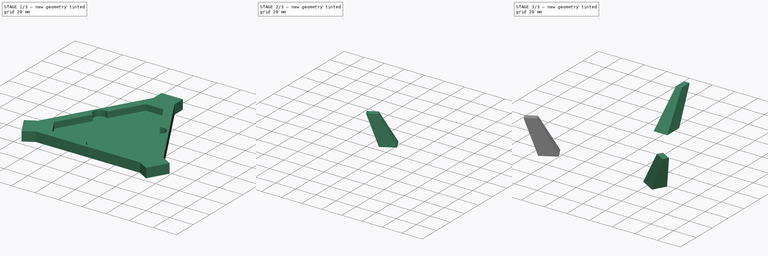
[diagram: build sequence overview — one tinted view per stage of 3, left to right]
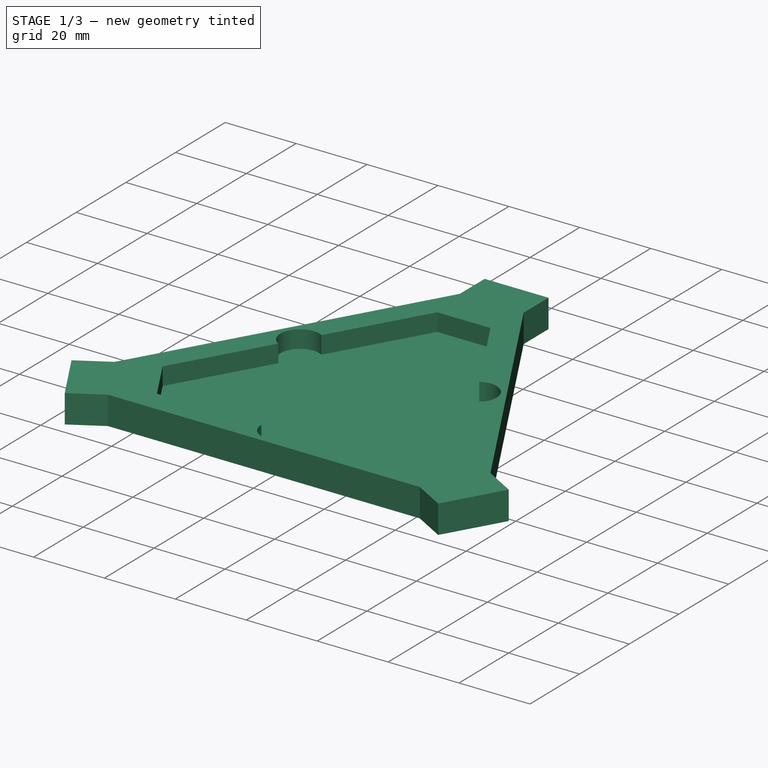
[diagram: stage 1 of 3 — iso view after this stage's code; geometry added in this stage tinted green]
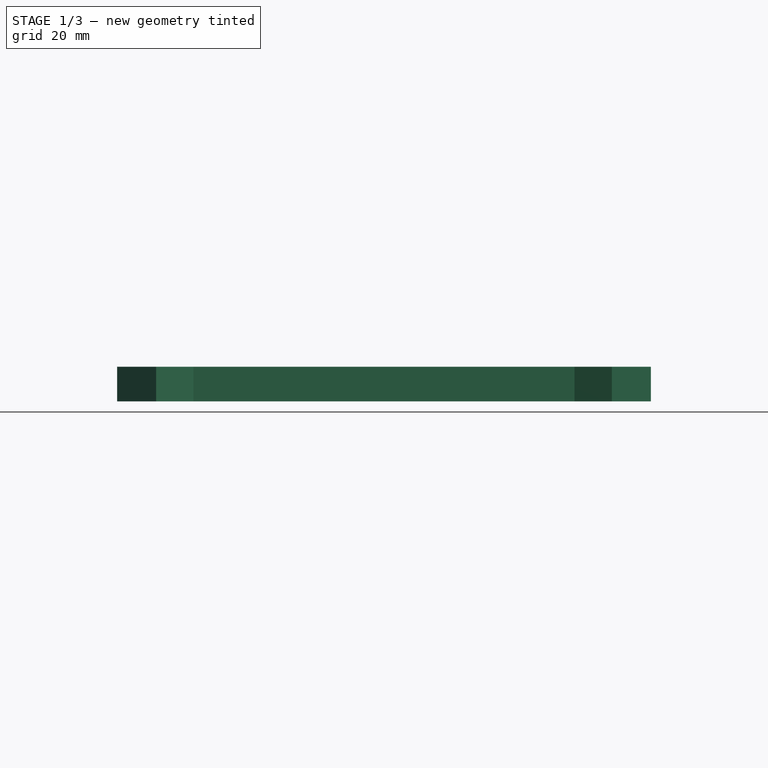
[diagram: stage 1 of 3 — front view after this stage's code; geometry added in this stage tinted green]
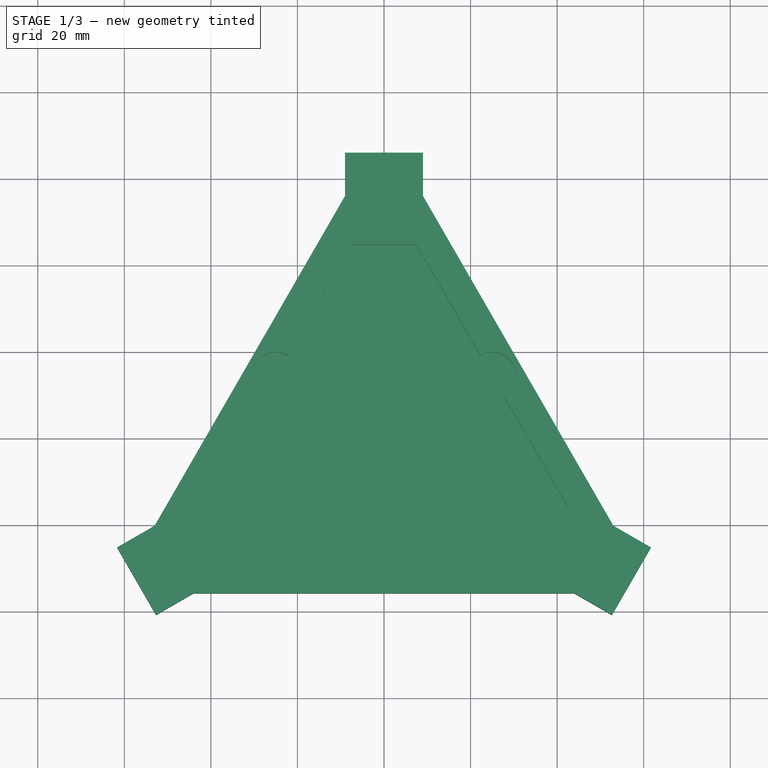
[diagram: stage 1 of 3 — top view after this stage's code; geometry added in this stage tinted green]
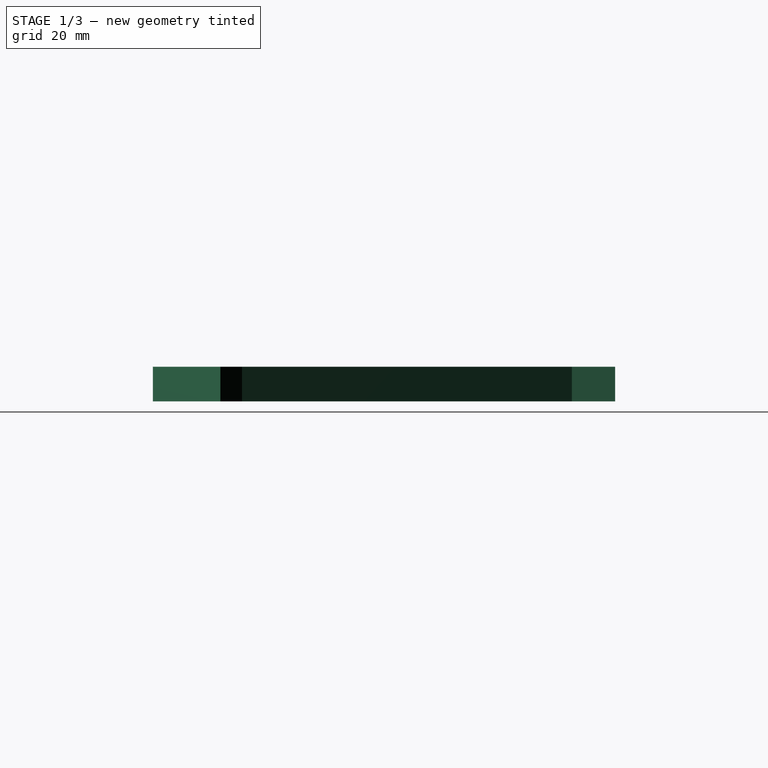
[diagram: stage 1 of 3 — right view after this stage's code; geometry added in this stage tinted green]
FCSTD DOCUMENT
Label: XMP Base
objects: Sketcher::SketchObject×9, Part::Loft×3, PartDesign::Pocket×2, PartDesign::Pad×1
note: 18 computed .brp shape members not serialized (recipe doc carries the construction recipe); baked Part::Feature solids carry a one-line shape summary decoded from their .brp

FEATURE [Sketcher::SketchObject] Sketch
  sketch-geometry (14):
    g0: LineSegment StartX=8.99998 StartY=56.003 StartZ=0 EndX=53 EndY=-20.2073 EndZ=0
    g1: LineSegment StartX=44 StartY=-35.7957 StartZ=0 EndX=-44 EndY=-35.7957 EndZ=0
    g2: LineSegment StartX=-53 StartY=-20.2072 StartZ=0 EndX=-9.00002 EndY=56.003 EndZ=0
    g3: LineSegment [constr] StartX=-31 StartY=17.8979 StartZ=0 EndX=64.2628 EndY=-37.1021 EndZ=0
    g4: LineSegment [constr] StartX=-64.2628 StartY=-37.1021 StartZ=0 EndX=31 EndY=17.8978 EndZ=0
    g5: LineSegment StartX=-9.00002 StartY=56.003 StartZ=0 EndX=-9.00002 EndY=66.003 EndZ=0
    g6: LineSegment StartX=-9.00002 StartY=66.003 StartZ=0 EndX=8.99998 EndY=66.003 EndZ=0
    g7: LineSegment StartX=8.99998 StartY=66.003 StartZ=0 EndX=8.99998 EndY=56.003 EndZ=0
    g8: LineSegment StartX=-53 StartY=-20.2072 StartZ=0 EndX=-61.6603 EndY=-25.2072 EndZ=0
    g9: LineSegment StartX=-61.6603 StartY=-25.2072 StartZ=0 EndX=-52.6603 EndY=-40.7957 EndZ=0
    g10: LineSegment StartX=-52.6603 StartY=-40.7957 StartZ=0 EndX=-44 EndY=-35.7957 EndZ=0
    g11: LineSegment StartX=44 StartY=-35.7957 StartZ=0 EndX=52.6602 EndY=-40.7957 EndZ=0
    g12: LineSegment StartX=52.6602 StartY=-40.7957 StartZ=0 EndX=61.6602 EndY=-25.2072 EndZ=0
    g13: LineSegment StartX=61.6602 StartY=-25.2072 StartZ=0 EndX=53 EndY=-20.2073 EndZ=0
  constraints (42):
    c: Horizontal(g1)
    c: Distance(g2) = 88
    c: PointOnObject(g3,g2)
    c: PointOnObject(g4,g0)
    c: Symmetric(g2,g1,g4)
    c: Symmetric(g2,g2,g3)
    c: PointOnObject(g-1,g4)
    c: PointOnObject(g-1,g3)
    c: Vertical(g5)
    c: Coincident(g6,g5)
    c: Horizontal(g6)
    c: Coincident(g7,g6)
    c: Vertical(g7)
    c: Coincident(g5,g2)
    c: Coincident(g7,g0)
    c: DistanceY(g5) = 10
    c: DistanceY(g7) = -10
    c: Coincident(g9,g8)
    c: Coincident(g10,g9)
    c: Coincident(g10,g1)
    c: Distance(g9) = 18
    c: Distance(g8) = 10
    c: Coincident(g8,g2)
    c: Distance(g10) = 10
    c: Angle(g2,g8) = 2.61799
    c: Angle(g1,g10) = 3.66519
    c: Perpendicular(g10,g9)
    c: Distance(g4) = 110
    c: Coincident(g11,g1)
    c: Coincident(g12,g11)
    c: Coincident(g13,g12)
    c: Coincident(g13,g0)
    c: Perpendicular(g13,g12)
    c: Perpendicular(g11,g12)
    c: Distance(g11) = 10
    c: Distance(g13) = 10
    c: Distance(g3) = 110
    c: Angle(g1,g11) = 2.61799
    c: Equal(g2,g0)
    c: Equal(g1,g2)
    c: Equal(g6,g9)
    c: Equal(g12,g9)
FEATURE [PartDesign::Pad] Pad
  Length = 8
  Length2 = 100
  Sketch = -> Sketch
  Type = 0
FEATURE [Sketcher::SketchObject] Sketch001
  Placement = pos=(0,0,8) rot=(0,0,1;0rad)
  Support = -> Pad [Face14]
  sketch-geometry (17):
    g0: LineSegment StartX=-35 StartY=-28.8675 StartZ=0 EndX=-42.5 EndY=-15.8771 EndZ=0
    g1: LineSegment StartX=-35 StartY=-28.8675 StartZ=0 EndX=-5.49998 EndY=-28.8675 EndZ=0
    g2: LineSegment StartX=5.50002 StartY=-28.8675 StartZ=0 EndX=35 EndY=-28.8675 EndZ=0
    g3: LineSegment StartX=35 StartY=-28.8675 StartZ=0 EndX=42.5 EndY=-15.8771 EndZ=0
    g4: LineSegment StartX=42.5 StartY=-15.8771 StartZ=0 EndX=27.75 EndY=9.67064 EndZ=0
    g5: LineSegment StartX=22.25 StartY=19.1969 StartZ=0 EndX=7.50001 EndY=44.7447 EndZ=0
    g6: LineSegment StartX=7.50001 StartY=44.7447 StartZ=0 EndX=-7.49999 EndY=44.7447 EndZ=0
    g7: LineSegment StartX=-7.49999 StartY=44.7447 StartZ=0 EndX=-22.25 EndY=19.1969 EndZ=0
    g8: LineSegment StartX=-42.5 StartY=-15.8771 StartZ=0 EndX=-27.75 EndY=9.67063 EndZ=0
    g9: ArcOfCircle CenterX=-25 CenterY=14.4338 CenterZ=0 NormalX=0 NormalY=0 NormalZ=1 Radius=5.5 StartAngle=1.0472 EndAngle=4.18879
    g10: LineSegment [constr] StartX=-42.5 StartY=-15.8771 StartZ=0 EndX=-7.49999 EndY=44.7447 EndZ=0
    g11: ArcOfCircle CenterX=25 CenterY=14.4338 CenterZ=0 NormalX=0 NormalY=0 NormalZ=1 Radius=5.5 StartAngle=5.23599 EndAngle=8.37758
    g12: LineSegment [constr] StartX=7.50001 StartY=44.7447 StartZ=0 EndX=42.5 EndY=-15.8771 EndZ=0
    g13: ArcOfCircle CenterX=1.6799e-05 CenterY=-28.8675 CenterZ=0 NormalX=0 NormalY=0 NormalZ=1 Radius=5.5 StartAngle=3.14159 EndAngle=6.28319
    g14: LineSegment [constr] StartX=-35 StartY=-28.8675 StartZ=0 EndX=35 EndY=-28.8675 EndZ=0
    g15: LineSegment [constr] StartX=-47.8526 StartY=27.6277 StartZ=0 EndX=38.75 EndY=-22.3723 EndZ=0
    g16: LineSegment [constr] StartX=-38.75 StartY=-22.3723 StartZ=0 EndX=47.8526 EndY=27.6277 EndZ=0
  constraints (52):
    c: Coincident(g1,g0)
    c: Horizontal(g1)
    c: Horizontal(g2)
    c: Coincident(g3,g2)
    c: Coincident(g4,g3)
    c: Coincident(g6,g5)
    c: Horizontal(g6)
    c: Coincident(g7,g6)
    c: Coincident(g8,g0)
    c: Coincident(g9,g7)
    c: Coincident(g9,g8)
    c: Distance(g7,g8) = 11
    c: PointOnObject(g8,g10)
    c: PointOnObject(g7,g10)
    c: Coincident(g10,g6)
    c: Coincident(g10,g0)
    c: Angle(g0) = 2.0944
    c: Distance(g0) = 15
    c: Distance(g8,g0) = 29.5
    c: Distance(g7,g6) = 29.5
    c: Angle(g10,g6) = 2.0944
    c: DistanceX(g6) = -15
    c: DistanceX(g1) = 29.5
    c: DistanceX(g2) = 29.5
    c: Coincident(g11,g5)
    c: Coincident(g4,g11)
    c: Distance(g4,g5) = 11
    c: PointOnObject(g4,g12)
    c: PointOnObject(g5,g12)
    c: Coincident(g12,g5)
    c: Coincident(g3,g12)
    c: Distance(g4,g3) = 29.5
    c: Distance(g5,g5) = 29.5
    c: Distance(g3) = 15
    c: Coincident(g13,g2)
    c: Coincident(g13,g1)
    c: Radius(g13) = 5.5
    c: Distance(g2,g1) = 11
    c: PointOnObject(g1,g14)
    c: PointOnObject(g2,g14)
    c: Coincident(g14,g0)
    c: Coincident(g14,g2)
    c: Symmetric(g3,g2,g15)
    c: PointOnObject(g15,g3)
    c: Distance(g15) = 100
    c: PointOnObject(g16,g0)
    c: Symmetric(g0,g0,g16)
    c: Distance(g16) = 100
    c: PointOnObject(g-1,g16)
    c: PointOnObject(g-1,g15)
    c: Equal(g11,g13)
    c: Equal(g13,g9)
FEATURE [PartDesign::Pocket] Pocket
  Length = 5
  Sketch = -> Sketch001
  Type = 0
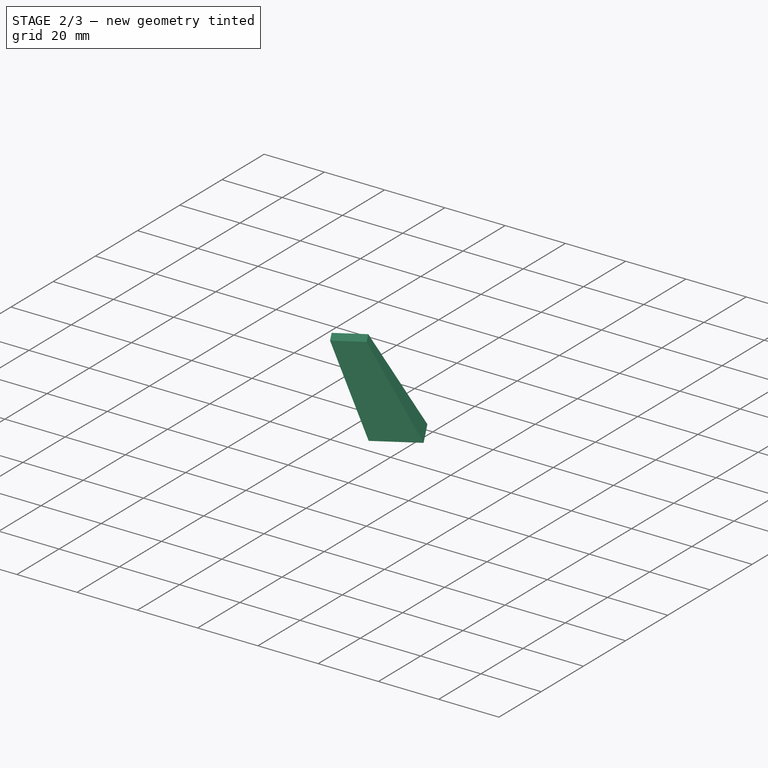
[diagram: stage 2 of 3 — iso view after this stage's code; geometry added in this stage tinted green]
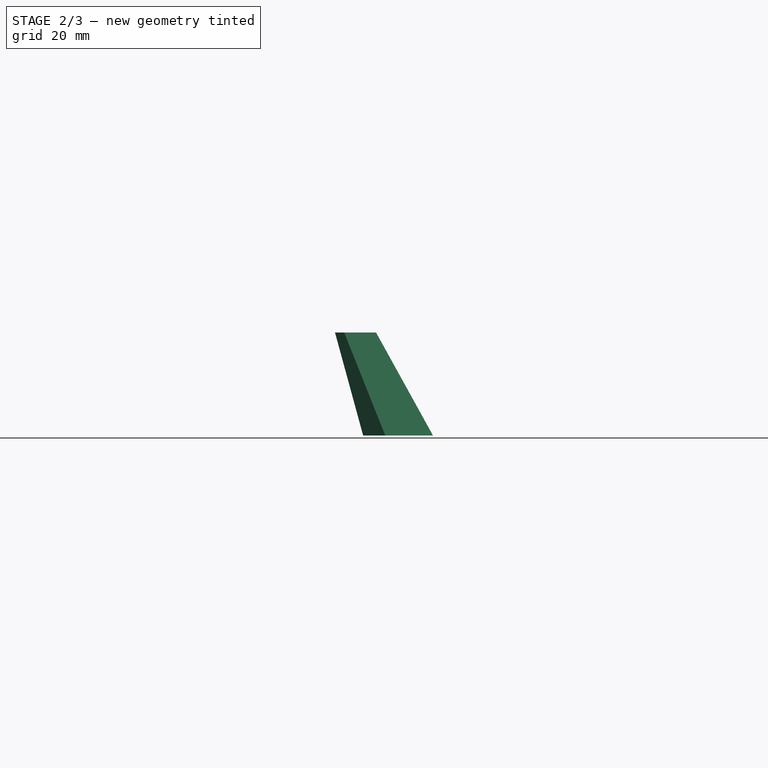
[diagram: stage 2 of 3 — front view after this stage's code; geometry added in this stage tinted green]
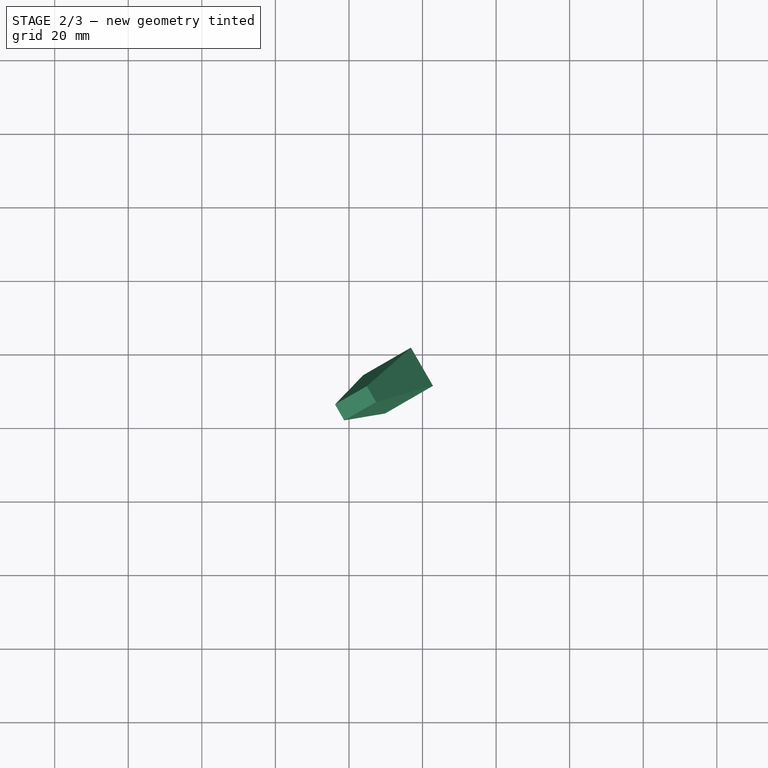
[diagram: stage 2 of 3 — top view after this stage's code; geometry added in this stage tinted green]
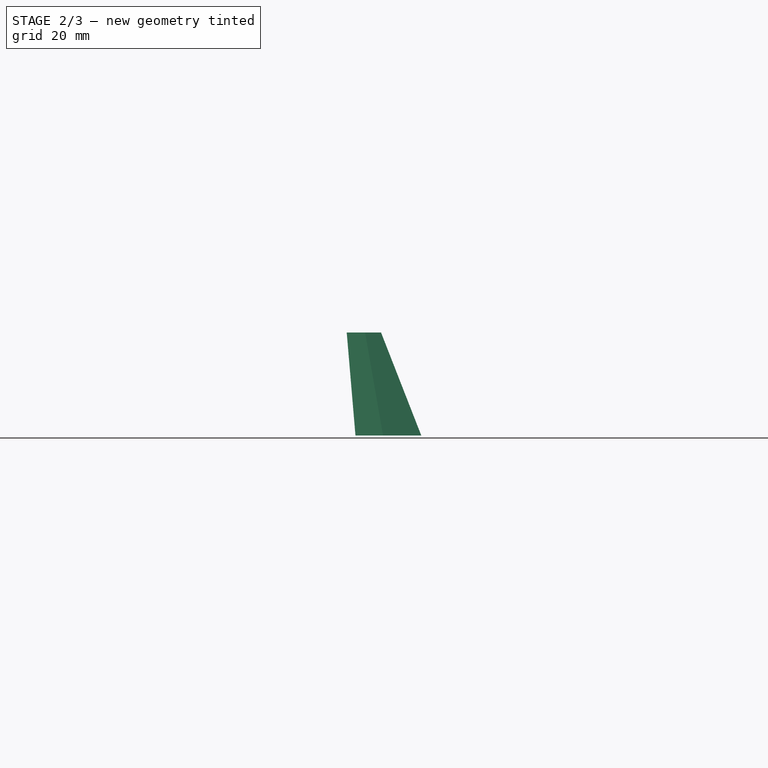
[diagram: stage 2 of 3 — right view after this stage's code; geometry added in this stage tinted green]
FEATURE [Sketcher::SketchObject] Sketch003
  Placement = pos=(0,0,3) rot=(0,0,1;0rad)
  Support = -> Pocket [Face27]
  sketch-geometry (6):
    g0: Circle CenterX=-26.6303 CenterY=15.375 CenterZ=0 NormalX=0 NormalY=0 NormalZ=1 Radius=1.5
    g1: LineSegment [constr] StartX=-51.9615 StartY=30 StartZ=0 EndX=51.9615 EndY=-30 EndZ=0
    g2: LineSegment [constr] StartX=0 StartY=-60 StartZ=0 EndX=0 EndY=60 EndZ=0
    g3: LineSegment [constr] StartX=51.9615 StartY=30 StartZ=0 EndX=-51.9615 EndY=-30 EndZ=0
    g4: Circle CenterX=0 CenterY=-30.75 CenterZ=0 NormalX=0 NormalY=0 NormalZ=1 Radius=1.5
    g5: Circle CenterX=26.6303 CenterY=15.375 CenterZ=0 NormalX=0 NormalY=0 NormalZ=1 Radius=1.5
  constraints (21):
    c: Radius(g0) = 1.5
    c: Vertical(g2)
    c: PointOnObject(g0,g1)
    c: PointOnObject(g-1,g3)
    c: PointOnObject(g-1,g1)
    c: PointOnObject(g-1,g2)
    c: Distance(g-1,g2) = 60
    c: Distance(g-1,g2) = 60
    c: Distance(g-1,g1) = 60
    c: Distance(g-1,g3) = 60
    c: Distance(g-1,g3) = 60
    c: Distance(g-1,g1) = 60
    c: Angle(g3,g2) = 1.0472
    c: Angle(g2,g1) = 1.0472
    c: Distance(g-1,g0) = 30.75
    c: Equal(g0,g4)
    c: Equal(g5,g0)
    c: PointOnObject(g4,g2)
    c: Distance(g-1,g4) = 30.75
    c: PointOnObject(g5,g3)
    c: Distance(g-1,g5) = 30.75
FEATURE [PartDesign::Pocket] Pocket001
  Length = 5
  Sketch = -> Sketch003
  Type = 1
FEATURE [Part::Loft] Loft002
  Ruled = false
  Sections = -> [Sketch008,Sketch005]
  Solid = true
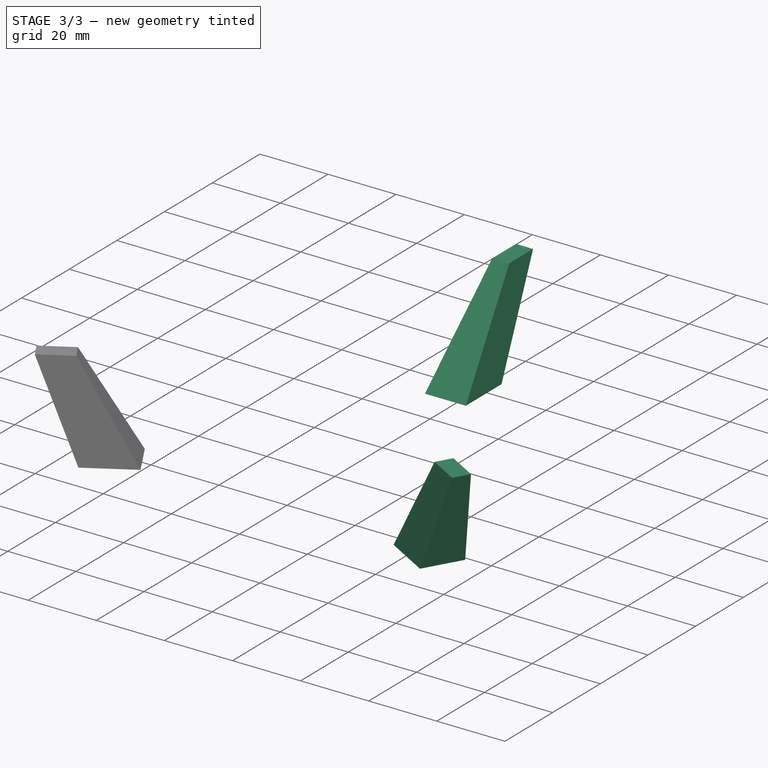
[diagram: stage 3 of 3 — iso view after this stage's code; geometry added in this stage tinted green]
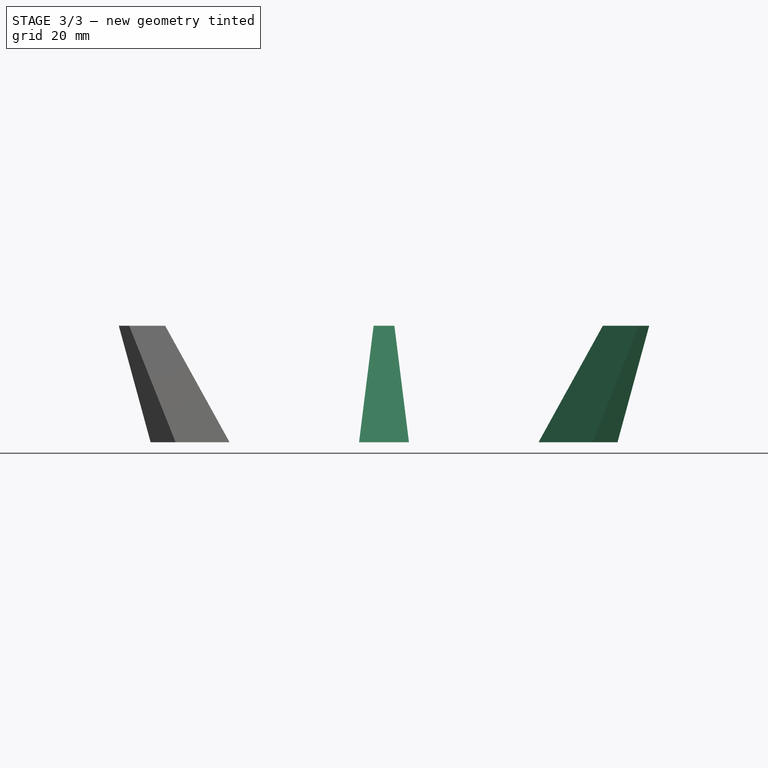
[diagram: stage 3 of 3 — front view after this stage's code; geometry added in this stage tinted green]
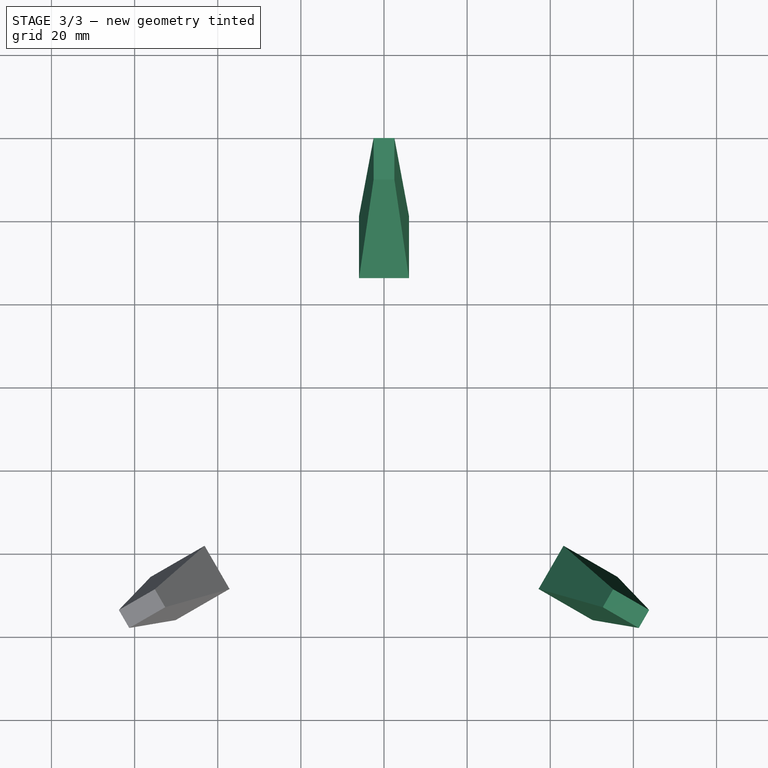
[diagram: stage 3 of 3 — top view after this stage's code; geometry added in this stage tinted green]
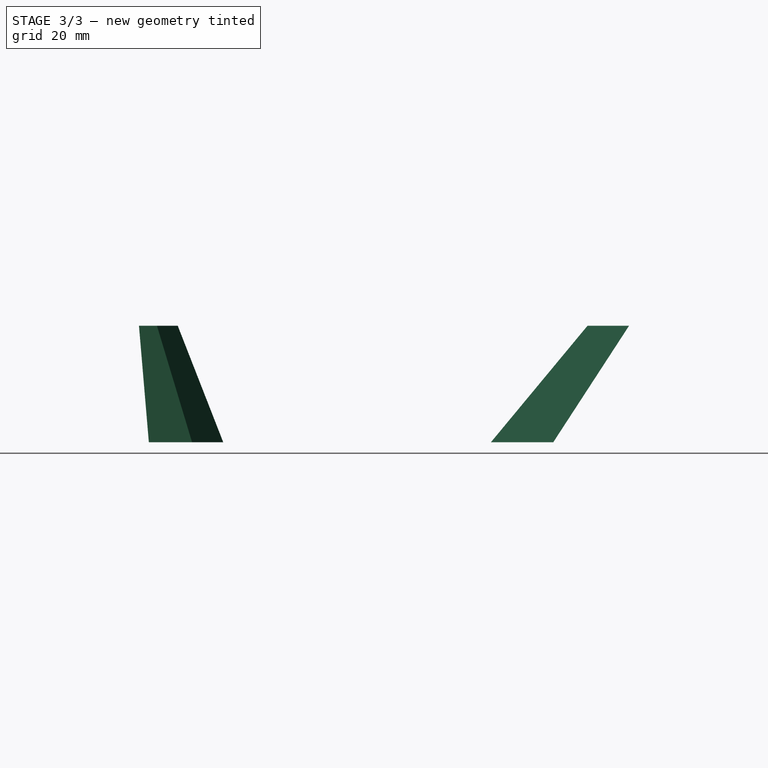
[diagram: stage 3 of 3 — right view after this stage's code; geometry added in this stage tinted green]
FEATURE [Sketcher::SketchObject] Sketch004
  ExternalGeometry = -> [Pocket001]
  Placement = pos=(0,0,8) rot=(0,0,1;0rad)
  Support = -> Pocket001 [Face5]
  sketch-geometry (14):
    g0: LineSegment StartX=43.1836 StartY=-18.0039 StartZ=0 EndX=37.1836 EndY=-28.3962 EndZ=0
    g1: LineSegment StartX=37.1836 StartY=-28.3962 StartZ=0 EndX=50.174 EndY=-35.8962 EndZ=0
    g2: LineSegment StartX=50.174 StartY=-35.8962 StartZ=0 EndX=56.174 EndY=-25.5038 EndZ=0
    g3: LineSegment StartX=56.174 StartY=-25.5038 StartZ=0 EndX=43.1836 EndY=-18.0039 EndZ=0
    g4: LineSegment [constr] StartX=-54.9062 StartY=31.7001 StartZ=0 EndX=54.9061 EndY=-31.7 EndZ=0
    g5: LineSegment [constr] StartX=54.9062 StartY=31.7001 StartZ=0 EndX=-54.9061 EndY=-31.7 EndZ=0
    g6: LineSegment [constr] StartX=0 StartY=-63.4001 StartZ=0 EndX=0 EndY=63.3999 EndZ=0
    g7: LineSegment [constr] StartX=-54.9061 StartY=-31.7 StartZ=0 EndX=0 EndY=-63.4001 EndZ=0
    g8: LineSegment [constr] StartX=54.9061 StartY=-31.7 StartZ=0 EndX=0 EndY=-63.4001 EndZ=0
    g9: LineSegment [constr] StartX=54.9061 StartY=-31.7 StartZ=0 EndX=54.9062 EndY=31.7001 EndZ=0
    g10: LineSegment [constr] StartX=54.9062 StartY=31.7001 StartZ=0 EndX=0 EndY=63.3999 EndZ=0
    g11: LineSegment [constr] StartX=0 StartY=63.3999 StartZ=0 EndX=-54.9062 EndY=31.7001 EndZ=0
    g12: LineSegment [constr] StartX=-54.9062 StartY=31.7001 StartZ=0 EndX=-54.9061 EndY=-31.7 EndZ=0
    g13: GeomPoint [constr] X=53.174 Y=-30.7 Z=0
  constraints (38):
    c: Coincident(g1,g0)
    c: Coincident(g2,g1)
    c: Coincident(g3,g2)
    c: Coincident(g3,g0)
    c: Perpendicular(g2,g1)
    c: Parallel(g3,g1)
    c: Parallel(g0,g2)
    c: PointOnObject(g-1,g5)
    c: PointOnObject(g-1,g4)
    c: PointOnObject(g-1,g6)
    c: Coincident(g7,g5)
    c: Coincident(g7,g6)
    c: Coincident(g8,g4)
    c: Coincident(g8,g6)
    c: Coincident(g9,g4)
    c: Coincident(g9,g5)
    c: Coincident(g10,g5)
    c: Coincident(g10,g6)
    c: Coincident(g11,g6)
    c: Coincident(g11,g4)
    c: Coincident(g12,g4)
    c: Coincident(g12,g5)
    c: Equal(g8,g9)
    c: Equal(g10,g9)
    c: Equal(g11,g10)
    c: Vertical(g6)
    c: Equal(g11,g12)
    c: Equal(g12,g7)
    c: Angle(g5,g6) = 1.0472
    c: Distance(g0) = 12
    c: Distance(g1) = 15
    c: Symmetric(g0,g0,g4)
    c: Angle(g6,g4) = 1.0472
    c: Angle(g7,g5) = 1.0472
    c: DistanceY(g6) = 126.8
    c: PointOnObject(g13,g2)
    c: Distance(g13,g1) = 6
    c: Distance(g13,g4) = 2
FEATURE [Sketcher::SketchObject] Sketch005
  Placement = pos=(0,0,36) rot=(0,0,1;0rad)
  sketch-geometry (10):
    g0: LineSegment StartX=-63.7937 StartY=-33.9446 StartZ=0 EndX=-61.2937 EndY=-38.2747 EndZ=0
    g1: LineSegment StartX=-61.2937 StartY=-38.2747 StartZ=0 EndX=-52.6334 EndY=-33.2747 EndZ=0
    g2: LineSegment StartX=-52.6334 StartY=-33.2747 StartZ=0 EndX=-55.1334 EndY=-28.9446 EndZ=0
    g3: LineSegment StartX=-55.1334 StartY=-28.9446 StartZ=0 EndX=-63.7937 EndY=-33.9446 EndZ=0
    g4: LineSegment [constr] StartX=-62.5437 StartY=-36.1096 StartZ=0 EndX=12.8005 EndY=7.39038 EndZ=0
    g5: LineSegment [constr] StartX=-25.601 StartY=-14.7808 StartZ=0 EndX=25.601 EndY=-14.7808 EndZ=0
    g6: LineSegment [constr] StartX=25.601 StartY=-14.7808 StartZ=0 EndX=-1.9901e-05 EndY=29.5615 EndZ=0
    g7: LineSegment [constr] StartX=-25.601 StartY=-14.7808 StartZ=0 EndX=-1.9901e-05 EndY=29.5615 EndZ=0
    g8: LineSegment [constr] StartX=-12.8005 StartY=7.39038 StartZ=0 EndX=62.5437 EndY=-36.1096 EndZ=0
    g9: LineSegment [constr] StartX=0 StartY=-14.7808 StartZ=0 EndX=-1e-12 EndY=72.2192 EndZ=0
  constraints (29):
    c: Coincident(g1,g0)
    c: Coincident(g2,g1)
    c: Coincident(g3,g2)
    c: Coincident(g3,g0)
    c: Perpendicular(g3,g0)
    c: Perpendicular(g0,g1)
    c: Perpendicular(g3,g2)
    c: Distance(g1) = 10
    c: Distance(g0) = 5
    c: Horizontal(g5)
    c: Coincident(g7,g5)
    c: Coincident(g7,g6)
    c: Coincident(g6,g5)
    c: Angle(g5,g7) = 1.0472
    c: PointOnObject(g5,g4)
    c: PointOnObject(g-1,g4)
    c: Symmetric(g6,g5,g8)
    c: PointOnObject(g-1,g8)
    c: Symmetric(g6,g5,g4)
    c: Distance(g4) = 87
    c: Symmetric(g0,g0,g4)
    c: PointOnObject(g4,g6)
    c: Distance(g7) = 51.2021
    c: PointOnObject(g8,g7)
    c: Distance(g8) = 87
    c: PointOnObject(g4,g0)
    c: PointOnObject(g9,g5)
    c: Symmetric(g5,g5,g9)
    c: DistanceY(g9) = 87
FEATURE [Sketcher::SketchObject] Sketch006
  ExternalGeometry = -> [Pocket001]
  Placement = pos=(0,0,8) rot=(0,0,1;0rad)
  Support = -> Pocket001 [Face5]
  sketch-geometry (5):
    g0: LineSegment StartX=-6 StartY=61.4 StartZ=0 EndX=6 EndY=61.4 EndZ=0
    g1: LineSegment StartX=6 StartY=61.4 StartZ=0 EndX=6 EndY=46.4 EndZ=0
    g2: LineSegment StartX=6 StartY=46.4 StartZ=0 EndX=-6 EndY=46.4 EndZ=0
    g3: LineSegment StartX=-6 StartY=46.4 StartZ=0 EndX=-6 EndY=61.4 EndZ=0
    g4: GeomPoint [constr] X=0 Y=61.4 Z=0
  constraints (14):
    c: Coincident(g0,g1)
    c: Coincident(g1,g2)
    c: Coincident(g2,g3)
    c: Coincident(g3,g0)
    c: Horizontal(g0)
    c: Horizontal(g2)
    c: Vertical(g1)
    c: Vertical(g3)
    c: Symmetric(g0,g0,g-2)
    c: DistanceX(g2) = -12
    c: DistanceY(g3) = 15
    c: PointOnObject(g4,g0)
    c: Distance(g4,g0) = 6
    c: DistanceY(g-1,g4) = 61.4
FEATURE [Sketcher::SketchObject] Sketch007
  Placement = pos=(0,0,36) rot=(0,0,1;0rad)
  sketch-geometry (5):
    g0: LineSegment StartX=-2.5 StartY=79.6224 StartZ=0 EndX=2.5 EndY=79.6224 EndZ=0
    g1: LineSegment StartX=2.5 StartY=79.6224 StartZ=0 EndX=2.5 EndY=69.6224 EndZ=0
    g2: LineSegment StartX=2.5 StartY=69.6224 StartZ=0 EndX=-2.5 EndY=69.6224 EndZ=0
    g3: LineSegment StartX=-2.5 StartY=69.6224 StartZ=0 EndX=-2.5 EndY=79.6224 EndZ=0
    g4: LineSegment [constr] StartX=0 StartY=0 StartZ=0 EndX=0 EndY=79.6224 EndZ=0
  constraints (15):
    c: Coincident(g0,g1)
    c: Coincident(g1,g2)
    c: Coincident(g2,g3)
    c: Coincident(g3,g0)
    c: Horizontal(g0)
    c: Horizontal(g2)
    c: Vertical(g1)
    c: Vertical(g3)
    c: DistanceX(g2) = -5
    c: DistanceY(g3) = 10
    c: Symmetric(g0,g0,g-2)
    c: Vertical(g4)
    c: Coincident(g4,g-1)
    c: PointOnObject(g4,g0)
    c: DistanceY(g4) = 79.6224
FEATURE [Part::Loft] Loft001
  Ruled = false
  Sections = -> [Sketch006,Sketch007]
  Solid = true
FEATURE [Sketcher::SketchObject] Sketch008
  Placement = pos=(0,0,8) rot=(0,0,1;0rad)
  Support = -> Pocket001 [Face5]
  sketch-geometry (14):
    g0: LineSegment StartX=-56.147 StartY=-25.5099 StartZ=0 EndX=-50.1438 EndY=-35.9003 EndZ=0
    g1: LineSegment StartX=-50.1438 StartY=-35.9003 StartZ=0 EndX=-37.1557 EndY=-28.3964 EndZ=0
    g2: LineSegment StartX=-37.1557 StartY=-28.3964 StartZ=0 EndX=-43.1589 EndY=-18.0059 EndZ=0
    g3: LineSegment StartX=-43.1589 StartY=-18.0059 StartZ=0 EndX=-56.147 EndY=-25.5099 EndZ=0
    g4: LineSegment [constr] StartX=54.8579 StartY=31.6945 StartZ=0 EndX=-54.8771 EndY=-31.7056 EndZ=0
    g5: LineSegment [constr] StartX=54.8578 StartY=-31.6721 StartZ=0 EndX=-54.8385 EndY=31.661 EndZ=0
    g6: LineSegment [constr] StartX=-1.6e-11 StartY=-63.3889 StartZ=0 EndX=-1.6e-11 EndY=63.4111 EndZ=0
    g7: LineSegment [constr] StartX=-54.8385 StartY=31.661 StartZ=0 EndX=-1.6e-11 EndY=63.4111 EndZ=0
    g8: LineSegment [constr] StartX=-1.6e-11 StartY=63.4111 StartZ=0 EndX=54.8579 EndY=31.6945 EndZ=0
    g9: LineSegment [constr] StartX=54.8578 StartY=-31.6721 StartZ=0 EndX=54.8579 EndY=31.6945 EndZ=0
    g10: LineSegment [constr] StartX=-1.6e-11 StartY=-63.3889 StartZ=0 EndX=54.8578 EndY=-31.6721 EndZ=0
    g11: LineSegment [constr] StartX=-54.8385 StartY=31.661 StartZ=0 EndX=-54.8771 EndY=-31.7056 EndZ=0
    g12: LineSegment [constr] StartX=-54.8771 StartY=-31.7056 StartZ=0 EndX=-1.6e-11 EndY=-63.3889 EndZ=0
    g13: GeomPoint [constr] X=-53.1454 Y=-30.7051 Z=0
  constraints (37):
    c: Coincident(g1,g0)
    c: Coincident(g2,g1)
    c: Coincident(g3,g2)
    c: Coincident(g3,g0)
    c: Perpendicular(g0,g3)
    c: Parallel(g3,g1)
    c: Parallel(g0,g2)
    c: Distance(g2) = 12
    c: Distance(g1) = 15
    c: Vertical(g6)
    c: Coincident(g7,g6)
    c: Coincident(g8,g4)
    c: Coincident(g9,g5)
    c: Coincident(g9,g4)
    c: Coincident(g10,g6)
    c: Coincident(g10,g5)
    c: Coincident(g11,g5)
    c: Coincident(g11,g4)
    c: Coincident(g12,g4)
    c: Coincident(g12,g6)
    c: Coincident(g6,g8)
    c: Coincident(g5,g7)
    c: PointOnObject(g-1,g4)
    c: PointOnObject(g-1,g6)
    c: PointOnObject(g-1,g5)
    c: Equal(g11,g7)
    c: Equal(g11,g12)
    c: Equal(g12,g10)
    c: Equal(g10,g9)
    c: Equal(g8,g9)
    c: Angle(g6,g12) = 1.0472
    c: Angle(g6,g5) = 1.0472
    c: Distance(g6) = 126.8
    c: Symmetric(g1,g2,g4)
    c: PointOnObject(g13,g4)
    c: PointOnObject(g13,g0)
    c: Distance(g4,g13) = 2
FEATURE [Sketcher::SketchObject] Sketch009
  Placement = pos=(0,0,36) rot=(0,0,1;0rad)
  sketch-geometry (9):
    g0: LineSegment [constr] StartX=0 StartY=17.3205 StartZ=0 EndX=-15 EndY=-8.66027 EndZ=0
    g1: LineSegment [constr] StartX=-15 StartY=-8.66027 StartZ=0 EndX=15 EndY=-8.66027 EndZ=0
    g2: LineSegment [constr] StartX=15 StartY=-8.66027 StartZ=0 EndX=0 EndY=17.3205 EndZ=0
    g3: LineSegment [constr] StartX=0 StartY=-8.66027 StartZ=0 EndX=0 EndY=60.734 EndZ=0
    g4: LineSegment [constr] StartX=62.5437 StartY=-36.1096 StartZ=0 EndX=-7.5 EndY=4.33012 EndZ=0
    g5: LineSegment StartX=55.1334 StartY=-28.9445 StartZ=0 EndX=52.6334 EndY=-33.2746 EndZ=0
    g6: LineSegment StartX=52.6334 StartY=-33.2746 StartZ=0 EndX=61.2937 EndY=-38.2746 EndZ=0
    g7: LineSegment StartX=61.2937 StartY=-38.2746 StartZ=0 EndX=63.7937 EndY=-33.9445 EndZ=0
    g8: LineSegment StartX=55.1334 StartY=-28.9445 StartZ=0 EndX=63.7937 EndY=-33.9445 EndZ=0
  constraints (27):
    c: Coincident(g1,g0)
    c: Horizontal(g1)
    c: Coincident(g2,g0)
    c: Angle(g1,g0) = 1.0472
    c: Angle(g2,g1) = 1.0472
    c: Coincident(g2,g1)
    c: DistanceX(g1) = 30
    c: Vertical(g3)
    c: PointOnObject(g3,g1)
    c: Symmetric(g0,g1,g3)
    c: Distance(g3) = 69.3942
    c: PointOnObject(g-1,g3)
    c: Symmetric(g0,g0,g4)
    c: PointOnObject(g4,g0)
    c: PointOnObject(g-1,g4)
    c: Coincident(g6,g5)
    c: Coincident(g7,g6)
    c: Coincident(g8,g5)
    c: Coincident(g8,g7)
    c: Perpendicular(g7,g8)
    c: Perpendicular(g6,g5)
    c: Perpendicular(g6,g7)
    c: Distance(g7) = 5
    c: Distance(g6) = 10
    c: Symmetric(g7,g6,g4)
    c: PointOnObject(g4,g7)
    c: Distance(g-1,g4) = 72.2192
FEATURE [Part::Loft] Loft
  Ruled = false
  Sections = -> [Sketch004,Sketch009]
  Solid = true
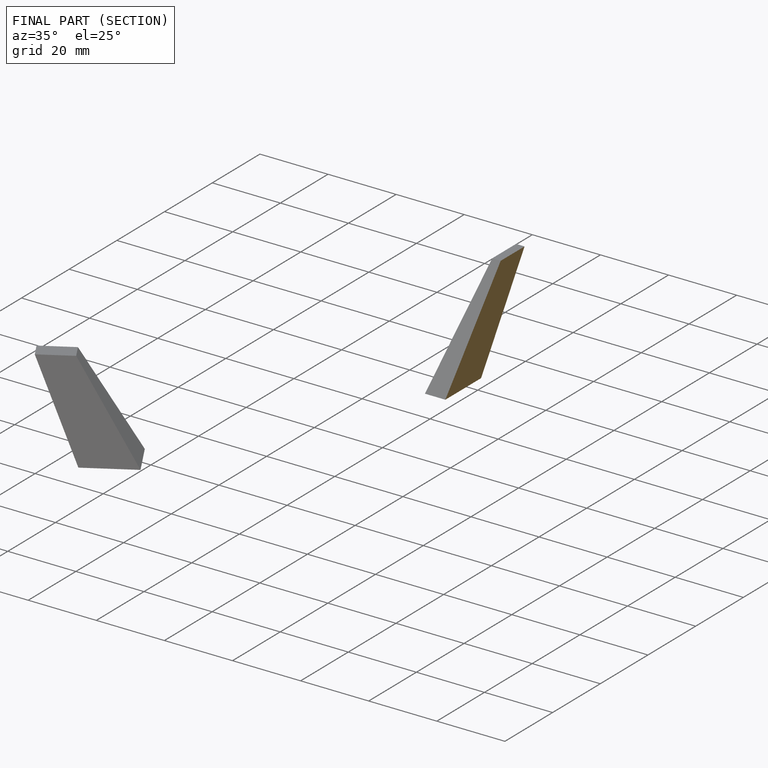
[diagram: finished part — half-section view (interior)]
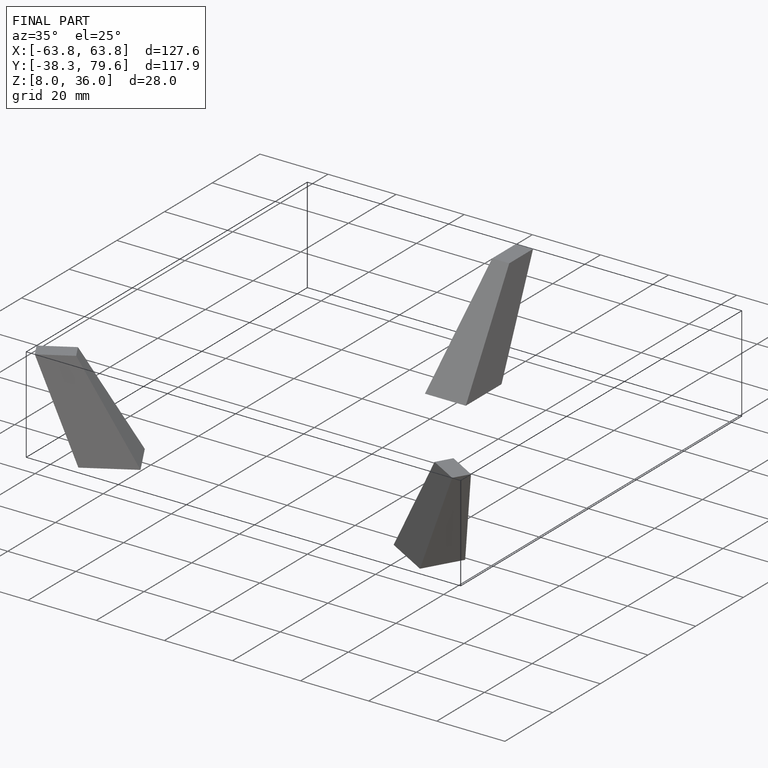
[diagram: finished part — iso view with bounding-box wireframe]
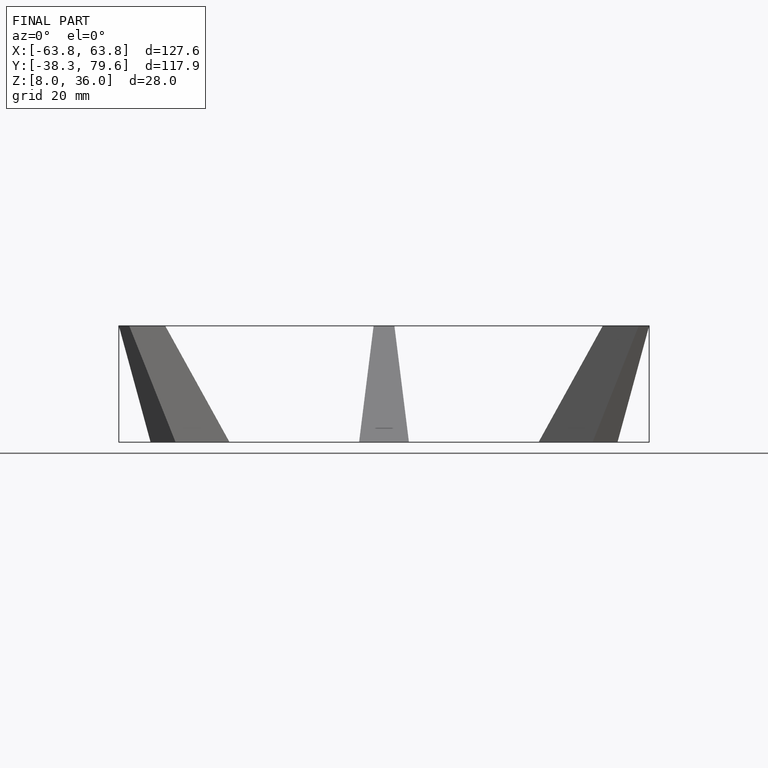
[diagram: finished part — front view with bounding-box wireframe]
